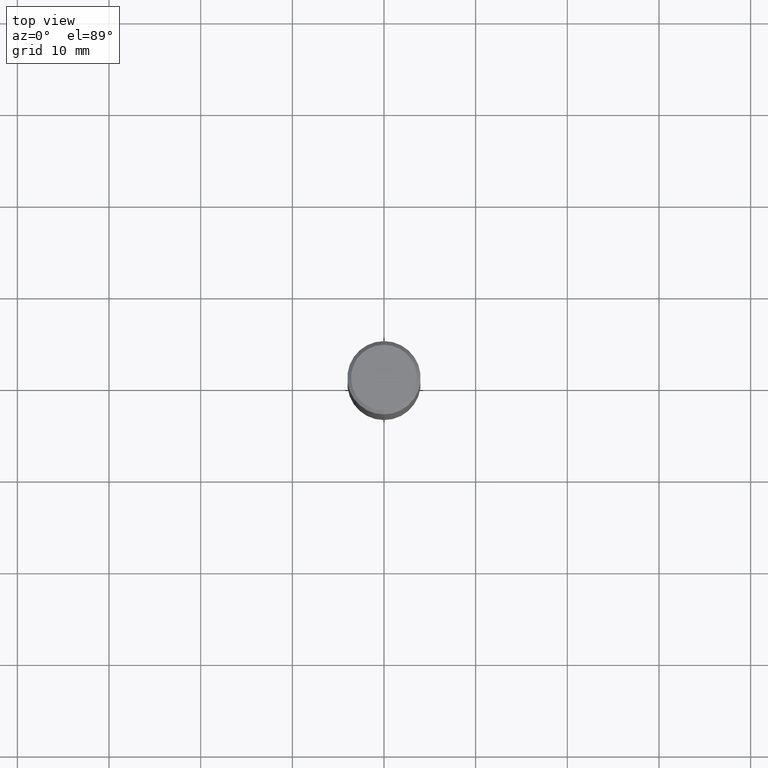
[diagram: clean part render]
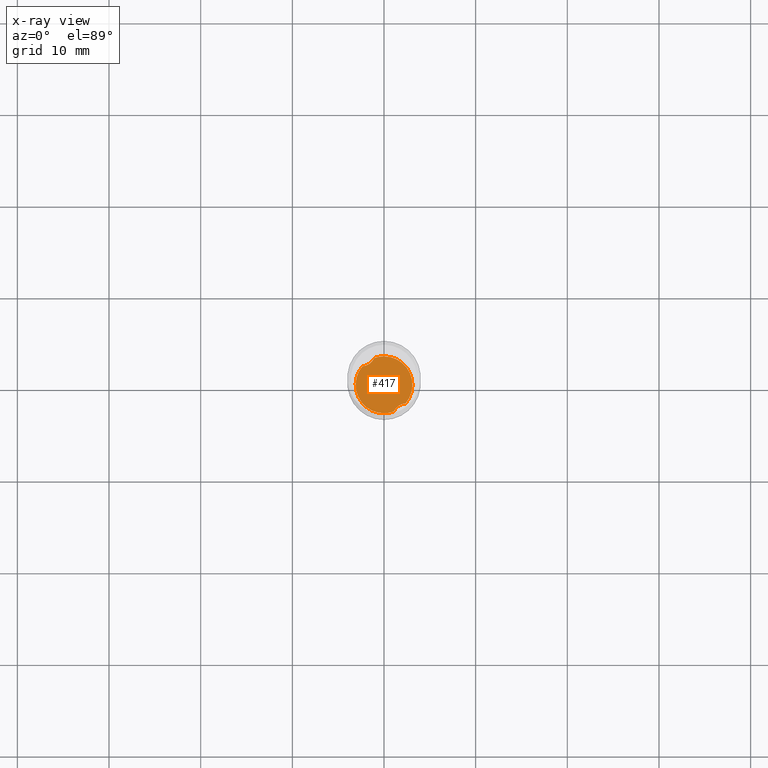
[diagram: x-ray — body ghosted, one internal face saturated and labeled with its STEP entity id]
A machine part, top view, then the same camera in x-ray: the body is ghosted and one INTERNAL B-rep face — a face not visible from any outside direction — is saturated and labeled: STEP entity #417.
In plain terms, the highlighted planar face has unit normal (-0, 0, 1).
Its self-contained STEP definition (entity closure, byte-faithful):
#303=VERTEX_POINT('',#797);
#327=VERTEX_POINT('',#824);
#385=EDGE_CURVE('',#601,#543,#885,.T.);
#393=EDGE_CURVE('',#601,#587,#893,.T.);
#417=ADVANCED_FACE('',(#919),#920,.T.);
#427=EDGE_CURVE('',#587,#479,#931,.T.);
#479=VERTEX_POINT('',#989);
#523=EDGE_CURVE('',#327,#543,#1037,.T.);
#543=VERTEX_POINT('',#1058);
#587=VERTEX_POINT('',#1109);
#601=VERTEX_POINT('',#1124);
#665=EDGE_CURVE('',#303,#479,#1196,.T.);
#711=EDGE_CURVE('',#303,#327,#1245,.T.);
#797=CARTESIAN_POINT('',(1.05803629962367,-2.91375002336828,-45.0));
#824=CARTESIAN_POINT('',(3.79721421251024E-016,-3.0999,-45.0));
#885=B_SPLINE_CURVE_WITH_KNOTS('',3,(#2536,#2537,#2538,#2539,#2540,#2541,#2542,#2543,#2544,#2545,#2546,#2547),.UNSPECIFIED.,.F.,.F.,(4,2,2,2,2,4),(0.0,0.675967644251588,1.29239687610274,1.91199321734809,2.30993380114023,2.72551434260028),.UNSPECIFIED.);
#893=CIRCLE('',#2560,3.0999);
#919=FACE_OUTER_BOUND('',#2699,.T.);
#920=PLANE('',#2700);
#931=CIRCLE('',#3016,3.0999);
#989=CARTESIAN_POINT('',(2.34788882383199,-2.02405486114503,-45.0));
#1037=CIRCLE('',#3451,3.0999);
#1058=CARTESIAN_POINT('',(-2.34788882383199,2.02405486114503,-45.0));
#1109=CARTESIAN_POINT('',(-3.79601924876509E-016,3.0999,-45.0));
#1124=CARTESIAN_POINT('',(-1.05803629962366,2.91375002336828,-45.0));
#1196=B_SPLINE_CURVE_WITH_KNOTS('',3,(#4939,#4940,#4941,#4942,#4943,#4944,#4945,#4946,#4947,#4948,#4949,#4950),.UNSPECIFIED.,.F.,.F.,(4,2,2,2,2,4),(0.0,0.675967644251572,1.2923968761027,1.91199321734808,2.30993380114022,2.72551434260015),.UNSPECIFIED.);
#1245=CIRCLE('',#5176,3.0999);
#2536=CARTESIAN_POINT('',(-0.963241558334036,3.1499,-45.0));
#2537=CARTESIAN_POINT('',(-1.03237649660123,2.93544578347396,-45.0));
#2538=CARTESIAN_POINT('',(-1.13917299589949,2.73664849894351,-44.9999999999905));
#2539=CARTESIAN_POINT('',(-1.41832405138041,2.40978471373174,-44.9999999999905));
#2540=CARTESIAN_POINT('',(-1.57929601671644,2.2828027453494,-45.0000000000005));
#2541=CARTESIAN_POINT('',(-1.94591415394495,2.09724349160594,-45.0000000000005));
#2542=CARTESIAN_POINT('',(-2.14520308041729,2.04231352738892,-45.0000000000001));
#2543=CARTESIAN_POINT('',(-2.48248793569378,2.0119261577485,-45.0000000000001));
#2544=CARTESIAN_POINT('',(-2.61526300122319,2.01520693033636,-45.0));
#2545=CARTESIAN_POINT('',(-2.88392930722551,2.04972418050277,-45.0));
#2546=CARTESIAN_POINT('',(-3.01896998728325,2.08209017779622,-45.0));
#2547=CARTESIAN_POINT('',(-3.1499,2.12707577775214,-45.0));
#2560=AXIS2_PLACEMENT_3D('',#5476,#5477,#5478);
#2699=EDGE_LOOP('',(#5522,#5523,#5524,#5525,#5526,#5527));
#2700=AXIS2_PLACEMENT_3D('',#5528,#5529,#5530);
#3016=AXIS2_PLACEMENT_3D('',#5539,#5540,#5541);
#3451=AXIS2_PLACEMENT_3D('',#5684,#5685,#5686);
#4939=CARTESIAN_POINT('',(0.963241558334043,-3.1499,-45.0));
#4940=CARTESIAN_POINT('',(1.03237649660124,-2.93544578347397,-45.0));
#4941=CARTESIAN_POINT('',(1.1391729958995,-2.73664849894351,-44.9999999999905));
#4942=CARTESIAN_POINT('',(1.41832405138042,-2.40978471373174,-44.9999999999905));
#4943=CARTESIAN_POINT('',(1.57929601671645,-2.2828027453494,-45.0000000000005));
#4944=CARTESIAN_POINT('',(1.94591415394497,-2.09724349160594,-45.0000000000005));
#4945=CARTESIAN_POINT('',(2.14520308041733,-2.04231352738892,-45.0000000000001));
#4946=CARTESIAN_POINT('',(2.48248793569377,-2.0119261577485,-45.0000000000001));
#4947=CARTESIAN_POINT('',(2.61526300122314,-2.01520693033636,-45.0));
#4948=CARTESIAN_POINT('',(2.8839293072255,-2.04972418050277,-45.0));
#4949=CARTESIAN_POINT('',(3.01896998728326,-2.08209017779622,-45.0));
#4950=CARTESIAN_POINT('',(3.1499,-2.12707577775214,-45.0));
#5176=AXIS2_PLACEMENT_3D('',#5917,#5918,#5919);
#5476=CARTESIAN_POINT('',(0.0,0.0,-45.0));
#5477=DIRECTION('',(0.0,0.0,-1.0));
#5478=DIRECTION('',(0.0,1.0,0.0));
#5522=ORIENTED_EDGE('',*,*,#665,.T.);
#5523=ORIENTED_EDGE('',*,*,#427,.F.);
#5524=ORIENTED_EDGE('',*,*,#393,.F.);
#5525=ORIENTED_EDGE('',*,*,#385,.T.);
#5526=ORIENTED_EDGE('',*,*,#523,.F.);
#5527=ORIENTED_EDGE('',*,*,#711,.F.);
#5528=CARTESIAN_POINT('',(0.0,1.54995,-45.0));
#5529=DIRECTION('',(-0.0,0.0,1.0));
#5530=DIRECTION('',(0.0,-1.0,0.0));
#5539=CARTESIAN_POINT('',(0.0,0.0,-45.0));
#5540=DIRECTION('',(0.0,0.0,-1.0));
#5541=DIRECTION('',(0.0,1.0,0.0));
#5684=CARTESIAN_POINT('',(0.0,0.0,-45.0));
#5685=DIRECTION('',(0.0,0.0,-1.0));
#5686=DIRECTION('',(0.0,1.0,0.0));
#5917=CARTESIAN_POINT('',(0.0,0.0,-45.0));
#5918=DIRECTION('',(0.0,0.0,-1.0));
#5919=DIRECTION('',(0.0,1.0,0.0));